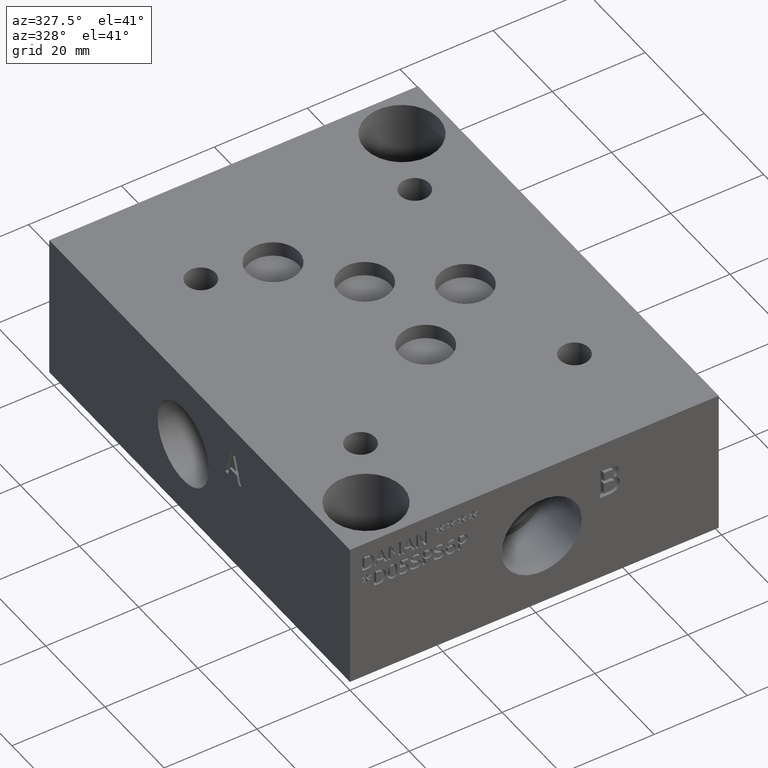
[diagram: clean part render]
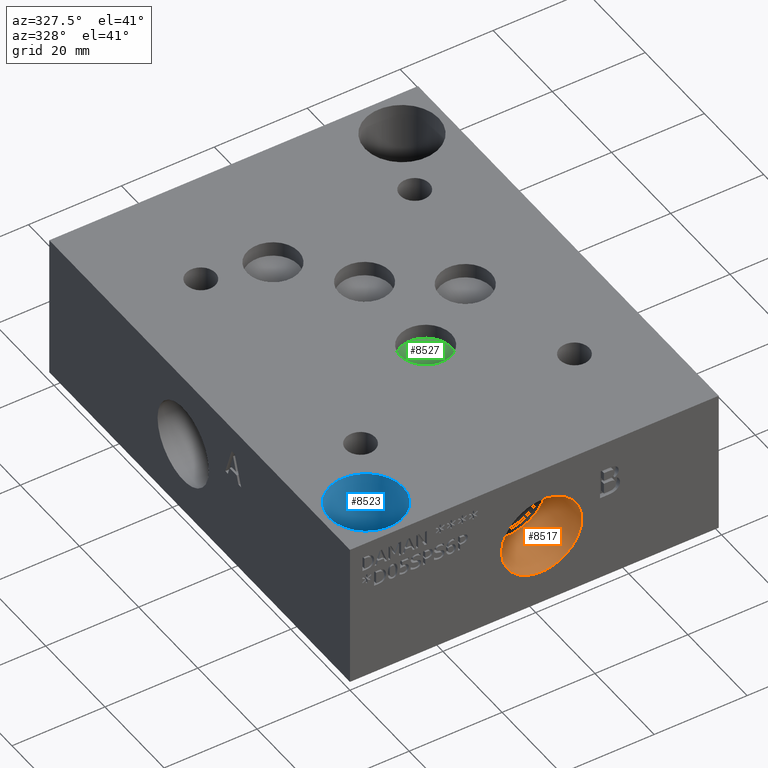
[diagram: same view with three faces highlighted in distinct colors, each labeled with its STEP entity id]
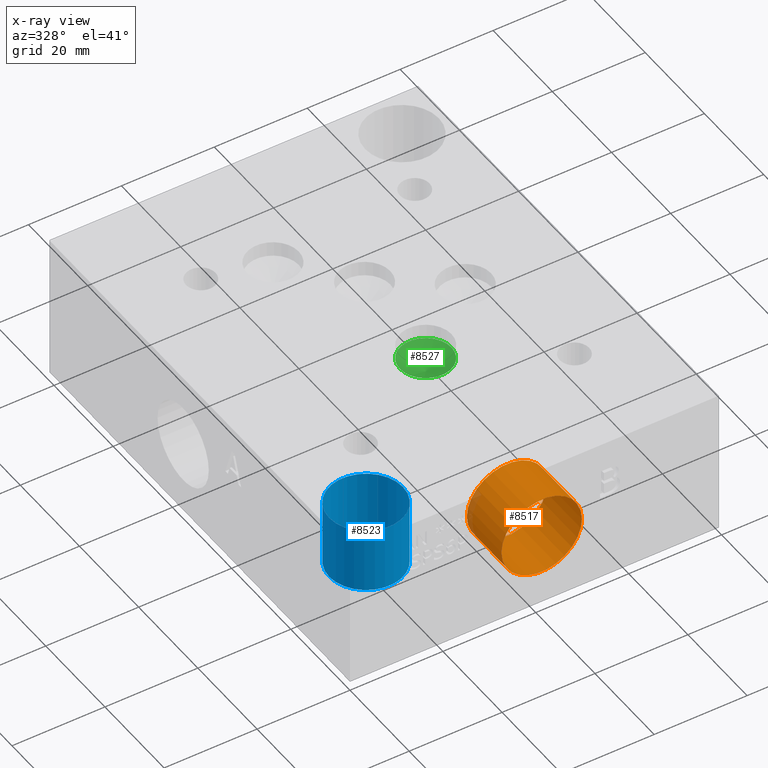
[diagram: x-ray of the same camera — body ghosted, the three highlighted faces saturated]
A machine part, auxiliary view with three faces highlighted in distinct colors.
The next image is the same camera in x-ray (body ghosted, the three faces saturated) — at least one of them is partly hidden behind the body in this view.
Their STEP definitions:

[orange] entity #8517 — the highlighted cylindrical surface (bore or boss wall) has radius 8.6487 mm, axis along (0, -1, 0).
#20=CYLINDRICAL_SURFACE('',#8862,8.6487);
#50=CIRCLE('',#8636,8.6487);
#51=CIRCLE('',#8637,8.6487);
#75=CIRCLE('',#8859,8.6487);
#76=CIRCLE('',#8860,8.6487);
#856=FACE_OUTER_BOUND('',#1329,.T.);
#1329=EDGE_LOOP('',(#7412,#7413,#7414,#7415,#7416,#7417));
#2188=LINE('',#14471,#3017);
#3017=VECTOR('',#10347,8.6487);
#3751=VERTEX_POINT('',#13108);
#3752=VERTEX_POINT('',#13109);
#4036=VERTEX_POINT('',#14464);
#4037=VERTEX_POINT('',#14465);
#4706=EDGE_CURVE('',#3751,#3752,#50,.T.);
#4707=EDGE_CURVE('',#3752,#3751,#51,.T.);
#5189=EDGE_CURVE('',#4036,#4037,#75,.T.);
#5190=EDGE_CURVE('',#4037,#4036,#76,.T.);
#5192=EDGE_CURVE('',#3752,#4037,#2188,.T.);
#7412=ORIENTED_EDGE('',*,*,#4706,.F.);
#7413=ORIENTED_EDGE('',*,*,#4707,.F.);
#7414=ORIENTED_EDGE('',*,*,#5192,.T.);
#7415=ORIENTED_EDGE('',*,*,#5189,.F.);
#7416=ORIENTED_EDGE('',*,*,#5190,.F.);
#7417=ORIENTED_EDGE('',*,*,#5192,.F.);
#8517=ADVANCED_FACE('',(#856),#20,.F.);
#8636=AXIS2_PLACEMENT_3D('',#13110,#9485,#9486);
#8637=AXIS2_PLACEMENT_3D('',#13111,#9487,#9488);
#8859=AXIS2_PLACEMENT_3D('',#14466,#10339,#10340);
#8860=AXIS2_PLACEMENT_3D('',#14467,#10341,#10342);
#8862=AXIS2_PLACEMENT_3D('',#14470,#10345,#10346);
#9485=DIRECTION('center_axis',(0.,1.,0.));
#9486=DIRECTION('ref_axis',(1.,0.,0.));
#9487=DIRECTION('center_axis',(0.,1.,0.));
#9488=DIRECTION('ref_axis',(1.,0.,0.));
#10339=DIRECTION('center_axis',(0.,-1.,0.));
#10340=DIRECTION('ref_axis',(1.,0.,0.));
#10341=DIRECTION('center_axis',(0.,-1.,0.));
#10342=DIRECTION('ref_axis',(1.,0.,0.));
#10345=DIRECTION('center_axis',(0.,-1.,0.));
#10346=DIRECTION('ref_axis',(1.,0.,0.));
#10347=DIRECTION('',(0.,1.,0.));
#13108=CARTESIAN_POINT('',(49.9237,0.,15.875));
#13109=CARTESIAN_POINT('',(32.6263,0.,15.875));
#13110=CARTESIAN_POINT('Origin',(41.275,0.,15.875));
#13111=CARTESIAN_POINT('Origin',(41.275,0.,15.875));
#14464=CARTESIAN_POINT('',(49.9237,11.7348,15.875));
#14465=CARTESIAN_POINT('',(32.6263,11.7348,15.875));
#14466=CARTESIAN_POINT('Origin',(41.275,11.7348,15.875));
#14467=CARTESIAN_POINT('Origin',(41.275,11.7348,15.875));
#14470=CARTESIAN_POINT('Origin',(41.275,5.8674,15.875));
#14471=CARTESIAN_POINT('',(32.6263,5.8674,15.875));

[blue] entity #8523 — the highlighted cylindrical surface (bore or boss wall) has radius 7.9375 mm, axis along (0, 0, 1).
#24=CYLINDRICAL_SURFACE('',#8877,7.9375);
#84=CIRCLE('',#8874,7.9375);
#85=CIRCLE('',#8875,7.9375);
#87=CIRCLE('',#8878,7.9375);
#88=CIRCLE('',#8879,7.9375);
#862=FACE_OUTER_BOUND('',#1337,.T.);
#1337=EDGE_LOOP('',(#7439,#7440,#7441,#7442,#7443,#7444));
#2192=LINE('',#14503,#3021);
#3021=VECTOR('',#10385,7.9375);
#4045=VERTEX_POINT('',#14492);
#4046=VERTEX_POINT('',#14493);
#4048=VERTEX_POINT('',#14499);
#4049=VERTEX_POINT('',#14500);
#5202=EDGE_CURVE('',#4045,#4046,#84,.T.);
#5203=EDGE_CURVE('',#4046,#4045,#85,.T.);
#5205=EDGE_CURVE('',#4048,#4049,#87,.T.);
#5206=EDGE_CURVE('',#4049,#4048,#88,.T.);
#5207=EDGE_CURVE('',#4049,#4046,#2192,.T.);
#7439=ORIENTED_EDGE('',*,*,#5205,.F.);
#7440=ORIENTED_EDGE('',*,*,#5206,.F.);
#7441=ORIENTED_EDGE('',*,*,#5207,.T.);
#7442=ORIENTED_EDGE('',*,*,#5202,.F.);
#7443=ORIENTED_EDGE('',*,*,#5203,.F.);
#7444=ORIENTED_EDGE('',*,*,#5207,.F.);
#8523=ADVANCED_FACE('',(#862),#24,.F.);
#8874=AXIS2_PLACEMENT_3D('',#14494,#10373,#10374);
#8875=AXIS2_PLACEMENT_3D('',#14495,#10375,#10376);
#8877=AXIS2_PLACEMENT_3D('',#14498,#10379,#10380);
#8878=AXIS2_PLACEMENT_3D('',#14501,#10381,#10382);
#8879=AXIS2_PLACEMENT_3D('',#14502,#10383,#10384);
#10373=DIRECTION('center_axis',(0.,0.,1.));
#10374=DIRECTION('ref_axis',(1.,0.,0.));
#10375=DIRECTION('center_axis',(0.,0.,1.));
#10376=DIRECTION('ref_axis',(1.,0.,0.));
#10379=DIRECTION('center_axis',(0.,0.,1.));
#10380=DIRECTION('ref_axis',(1.,0.,0.));
#10381=DIRECTION('center_axis',(0.,0.,-1.));
#10382=DIRECTION('ref_axis',(1.,0.,0.));
#10383=DIRECTION('center_axis',(0.,0.,-1.));
#10384=DIRECTION('ref_axis',(1.,0.,0.));
#10385=DIRECTION('',(0.,0.,-1.));
#14492=CARTESIAN_POINT('',(17.4625,9.525,17.526));
#14493=CARTESIAN_POINT('',(1.5875,9.525,17.526));
#14494=CARTESIAN_POINT('Origin',(9.525,9.525,17.526));
#14495=CARTESIAN_POINT('Origin',(9.525,9.525,17.526));
#14498=CARTESIAN_POINT('Origin',(9.525,9.525,24.638));
#14499=CARTESIAN_POINT('',(17.4625,9.525,31.75));
#14500=CARTESIAN_POINT('',(1.5875,9.525,31.75));
#14501=CARTESIAN_POINT('Origin',(9.525,9.525,31.75));
#14502=CARTESIAN_POINT('Origin',(9.525,9.525,31.75));
#14503=CARTESIAN_POINT('',(1.5875,9.525,24.638));

[green] entity #8527 — the highlighted conical surface has half-angle 60 deg.
#43=CONICAL_SURFACE('',#8888,2.778125,1.0471975511966);
#94=CIRCLE('',#8889,5.55625);
#95=CIRCLE('',#8890,5.55625);
#866=FACE_OUTER_BOUND('',#1341,.T.);
#1341=EDGE_LOOP('',(#7459,#7460,#7461,#7462));
#2196=LINE('',#14526,#3025);
#3025=VECTOR('',#10409,2.778125);
#4056=VERTEX_POINT('',#14522);
#4057=VERTEX_POINT('',#14523);
#4058=VERTEX_POINT('',#14525);
#5216=EDGE_CURVE('',#4056,#4057,#94,.T.);
#5217=EDGE_CURVE('',#4057,#4058,#2196,.T.);
#5218=EDGE_CURVE('',#4057,#4056,#95,.T.);
#7459=ORIENTED_EDGE('',*,*,#5216,.T.);
#7460=ORIENTED_EDGE('',*,*,#5217,.T.);
#7461=ORIENTED_EDGE('',*,*,#5217,.F.);
#7462=ORIENTED_EDGE('',*,*,#5218,.T.);
#8527=ADVANCED_FACE('',(#866),#43,.F.);
#8888=AXIS2_PLACEMENT_3D('',#14521,#10405,#10406);
#8889=AXIS2_PLACEMENT_3D('',#14524,#10407,#10408);
#8890=AXIS2_PLACEMENT_3D('',#14527,#10410,#10411);
#10405=DIRECTION('center_axis',(0.,0.,1.));
#10406=DIRECTION('ref_axis',(1.,0.,0.));
#10407=DIRECTION('center_axis',(0.,0.,1.));
#10408=DIRECTION('ref_axis',(1.,0.,0.));
#10409=DIRECTION('',(0.866025403784439,1.06057523872491E-16,-0.5));
#10410=DIRECTION('center_axis',(0.,0.,1.));
#10411=DIRECTION('ref_axis',(1.,0.,0.));
#14521=CARTESIAN_POINT('Origin',(42.08018,40.48252,26.9381487834076));
#14522=CARTESIAN_POINT('',(47.63643,40.48252,28.5421));
#14523=CARTESIAN_POINT('',(36.52393,40.48252,28.5421));
#14524=CARTESIAN_POINT('Origin',(42.08018,40.48252,28.5421));
#14525=CARTESIAN_POINT('',(42.08018,40.48252,25.3341975668151));
#14526=CARTESIAN_POINT('',(39.302055,40.48252,26.9381487834076));
#14527=CARTESIAN_POINT('Origin',(42.08018,40.48252,28.5421));